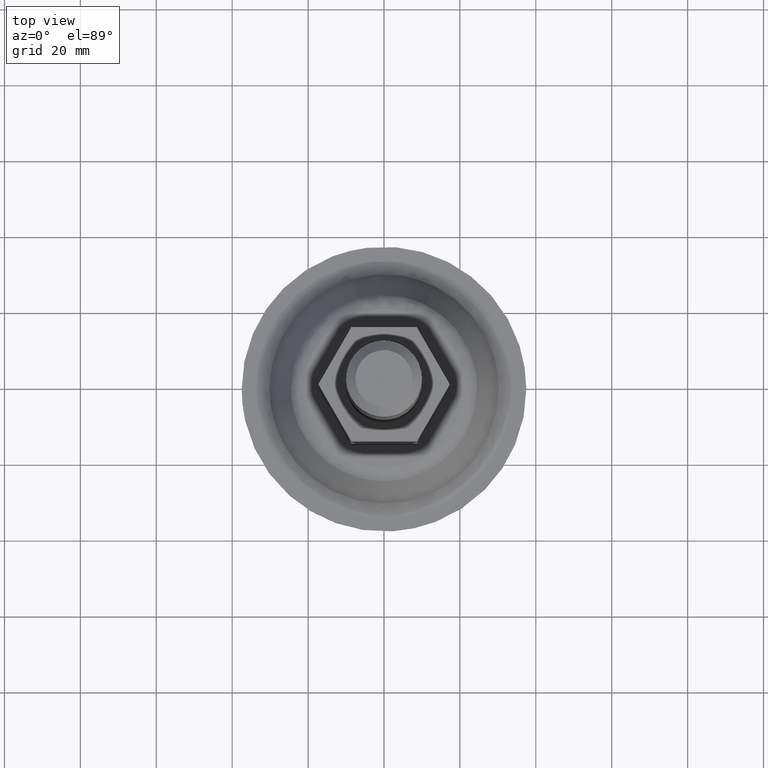
[diagram: clean part render]
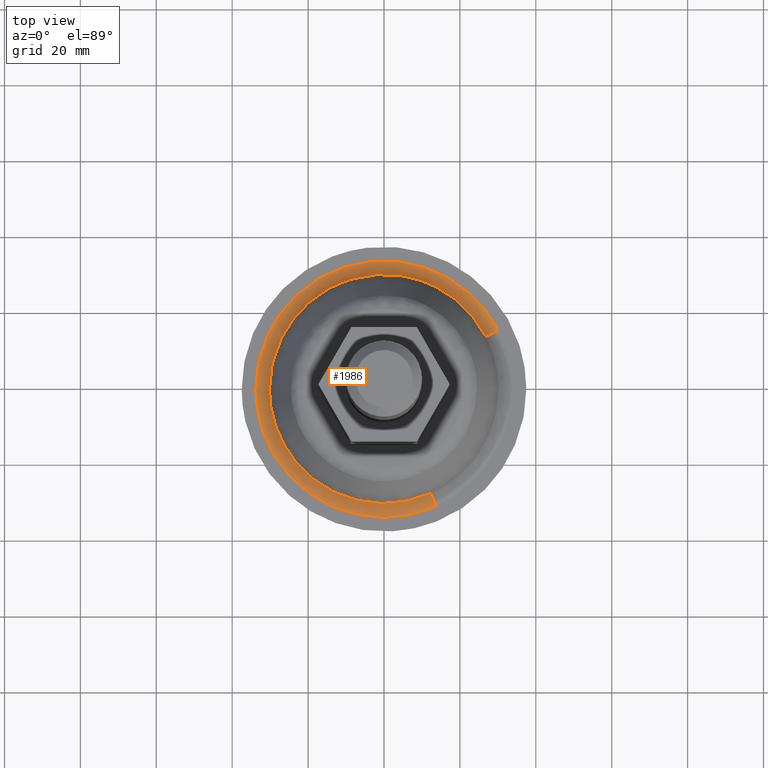
[diagram: same view with one face highlighted and labeled with its STEP entity id]
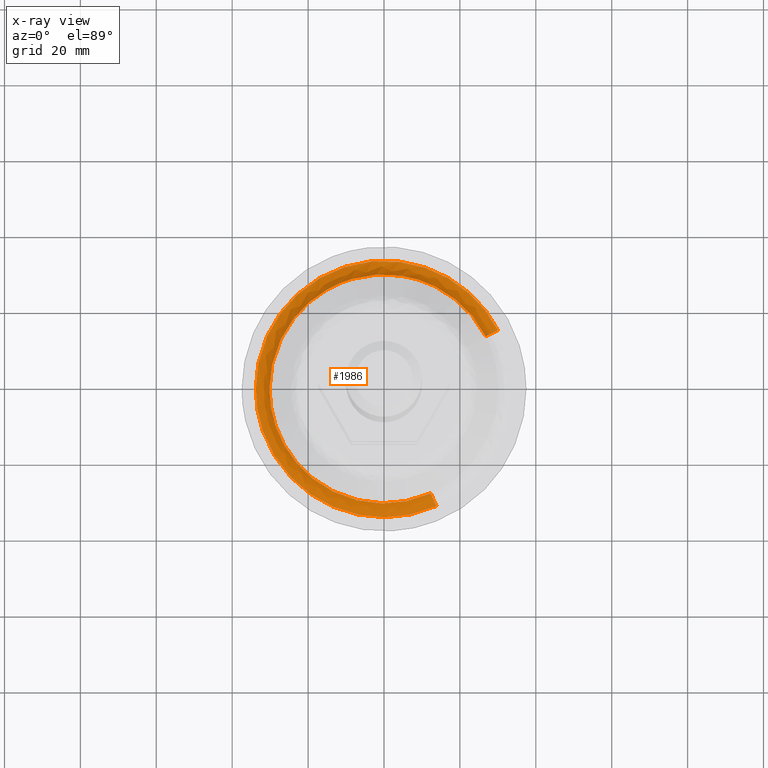
[diagram: x-ray of the same camera — body ghosted, the highlighted face saturated]
A machine part, top view. The second image highlights one B-rep face of the part: STEP entity #1986.
The next image is the same camera in x-ray: the body ghosted, the highlighted face saturated — about 0% of this face is hidden behind the body in this view.
In plain terms, the highlighted face is a freeform B-spline surface patch.
Its self-contained STEP definition (entity closure, byte-faithful):
#1363=CARTESIAN_POINT('',(13.517878388896150,26.992745342774910,4.237050468411897));
#1364=VERTEX_POINT('',#1363);
#1365=CARTESIAN_POINT('',(26.811445477794560,13.873994691064590,4.237050467771169));
#1366=VERTEX_POINT('',#1365);
#1367=CARTESIAN_POINT('',(13.517878388896156,26.992745342774910,4.237050468411898));
#1368=CARTESIAN_POINT('',(22.298365181530201,22.595506338426521,4.237050468196457));
#1369=CARTESIAN_POINT('',(26.811445477794560,13.873994691064585,4.237050467771169));
#1377=(BOUNDED_CURVE()B_SPLINE_CURVE(2,(#1367,#1368,#1369),.UNSPECIFIED.,.F.,.U.)B_SPLINE_CURVE_WITH_KNOTS((3,3),(0.326127052924682,0.421825371002833),.UNSPECIFIED.)CURVE()GEOMETRIC_REPRESENTATION_ITEM()RATIONAL_B_SPLINE_CURVE((0.875940413897502,0.832104291764548,0.874103860135936))REPRESENTATION_ITEM(''));
#1378=EDGE_CURVE('',#1364,#1366,#1377,.T.);
#1464=CARTESIAN_POINT('',(-8.573974541969548,28.945261810030381,4.237054400955577));
#1465=VERTEX_POINT('',#1464);
#1471=CARTESIAN_POINT('',(-30.188430520198551,0.0,4.237050468566710));
#1472=VERTEX_POINT('',#1471);
#1473=CARTESIAN_POINT('',(-30.188430520198551,0.0,4.237050468566710));
#1474=CARTESIAN_POINT('',(-30.188430246010984,22.542771308564824,4.237052434761144));
#1475=CARTESIAN_POINT('',(-8.573974541969548,28.945261810030377,4.237054400955578));
#1483=(BOUNDED_CURVE()B_SPLINE_CURVE(2,(#1473,#1474,#1475),.UNSPECIFIED.,.F.,.U.)B_SPLINE_CURVE_WITH_KNOTS((3,3),(0.0,0.201641530438395),.UNSPECIFIED.)CURVE()GEOMETRIC_REPRESENTATION_ITEM()RATIONAL_B_SPLINE_CURVE((1.0,0.763762252413711,0.908607232592370))REPRESENTATION_ITEM(''));
#1484=EDGE_CURVE('',#1472,#1465,#1483,.T.);
#1486=CARTESIAN_POINT('',(12.317877356347200,-27.561045603006491,4.237050467751741));
#1487=VERTEX_POINT('',#1486);
#1488=CARTESIAN_POINT('',(12.317877356347205,-27.561045603006495,4.237050467751740));
#1489=CARTESIAN_POINT('',(6.439147325489929,-30.188430520198558,4.237050468566710));
#1490=CARTESIAN_POINT('',(0.0,-30.188430520198551,4.237050468566710));
#1491=CARTESIAN_POINT('',(-30.188430520198555,-30.188430520198555,4.237050468566710));
#1492=CARTESIAN_POINT('',(-30.188430520198551,0.0,4.237050468566710));
#1500=(BOUNDED_CURVE()B_SPLINE_CURVE(2,(#1488,#1489,#1490,#1491,#1492),.UNSPECIFIED.,.F.,.U.)B_SPLINE_CURVE_WITH_KNOTS((3,2,3),(0.680709483577531,0.750000000000000,1.0),.UNSPECIFIED.)CURVE()GEOMETRIC_REPRESENTATION_ITEM()RATIONAL_B_SPLINE_CURVE((0.882641638331993,0.918821110447106,1.0,0.707106781186547,1.0))REPRESENTATION_ITEM(''));
#1501=EDGE_CURVE('',#1487,#1472,#1500,.T.);
#1548=CARTESIAN_POINT('',(-8.573974541969548,28.945261810030377,4.237054400955578));
#1549=CARTESIAN_POINT('',(-4.377112379070299,30.188429008750290,4.237053679103173));
#1550=CARTESIAN_POINT('',(0.000000339898227,30.188429372709980,4.237052906008486));
#1551=CARTESIAN_POINT('',(7.136676288094860,30.188429966129085,4.237051645514042));
#1552=CARTESIAN_POINT('',(13.517878388896150,26.992745342774910,4.237050468411897));
#1560=(BOUNDED_CURVE()B_SPLINE_CURVE(2,(#1548,#1549,#1550,#1551,#1552),.UNSPECIFIED.,.F.,.U.)B_SPLINE_CURVE_WITH_KNOTS((3,2,3),(0.201641530438395,0.250000000000000,0.326127052924682),.UNSPECIFIED.)CURVE()GEOMETRIC_REPRESENTATION_ITEM()RATIONAL_B_SPLINE_CURVE((0.908607232592370,0.943344528772836,1.0,0.910811609720431,0.875940413897502))REPRESENTATION_ITEM(''));
#1561=EDGE_CURVE('',#1465,#1364,#1560,.T.);
#1889=CARTESIAN_POINT('',(13.868563357608258,-31.030679725982115,2.005508355514911));
#1890=CARTESIAN_POINT('',(-15.435365784082222,-44.127505239221321,2.005508355514911));
#1891=CARTESIAN_POINT('',(-30.186713145655364,-15.620578840823697,2.005508355514911));
#1892=CARTESIAN_POINT('',(-45.807291986479058,14.566134304831667,2.005508355514911));
#1893=CARTESIAN_POINT('',(-15.620578840823697,30.186713145655364,2.005508355514911));
#1894=CARTESIAN_POINT('',(14.566134304831666,45.807291986479072,2.005508355514911));
#1895=CARTESIAN_POINT('',(30.186713145655364,15.620578840823697,2.005508355514911));
#1896=CARTESIAN_POINT('',(12.730357882329253,-28.483963915914732,1.858963620420696));
#1897=CARTESIAN_POINT('',(-14.168571423674409,-40.505921173260319,1.858963620420695));
#1898=CARTESIAN_POINT('',(-27.709262432333098,-14.338583878173209,1.858963620420696));
#1899=CARTESIAN_POINT('',(-42.047846310506294,13.370678554159884,1.858963620420695));
#1900=CARTESIAN_POINT('',(-14.338583878173209,27.709262432333098,1.858963620420696));
#1901=CARTESIAN_POINT('',(13.370678554159882,42.047846310506294,1.858963620420695));
#1902=CARTESIAN_POINT('',(27.709262432333098,14.338583878173209,1.858963620420696));
#1903=CARTESIAN_POINT('',(12.282242370426843,-27.481312915120213,4.427354544556725));
#1904=CARTESIAN_POINT('',(-13.669830013956551,-39.080090747327844,4.427354544556723));
#1905=CARTESIAN_POINT('',(-26.733881344536748,-13.833857937715386,4.427354544556725));
#1906=CARTESIAN_POINT('',(-40.567739282252127,12.900023406821353,4.427354544556725));
#1907=CARTESIAN_POINT('',(-13.833857937715397,26.733881344536748,4.427354544556725));
#1908=CARTESIAN_POINT('',(12.900023406821353,40.567739282252127,4.427354544556725));
#1909=CARTESIAN_POINT('',(26.733881344536748,13.833857937715397,4.427354544556725));
#1917=(BOUNDED_SURFACE()B_SPLINE_SURFACE(2,2,((#1889,#1896,#1903),(#1890,#1897,#1904),(#1891,#1898,#1905),(#1892,#1899,#1906),(#1893,#1900,#1907),(#1894,#1901,#1908),(#1895,#1902,#1909)),.UNSPECIFIED.,.F.,.F.,.U.)B_SPLINE_SURFACE_WITH_KNOTS((3,2,2,3),(3,3),(0.0,54.061945841300883,110.376472759322600,166.690999677344390),(0.0,5.033719472252810),.UNSPECIFIED.)GEOMETRIC_REPRESENTATION_ITEM()RATIONAL_B_SPLINE_SURFACE(((0.898933571987331,0.737985855779478,0.901312929656294),(0.661043326759624,0.542688181205107,0.662793020572444),(0.919619680268002,0.754968262264206,0.922053791315759),(0.650269312030109,0.533843177827644,0.651990488458139),(0.919619680268002,0.754968262264206,0.922053791315759),(0.650269312030109,0.533843177827644,0.651990488458139),(0.919619680268002,0.754968262264206,0.922053791315759)))REPRESENTATION_ITEM('')SURFACE());
#1918=CARTESIAN_POINT('',(13.782938070423331,-30.839094572454520,2.000000000000206));
#1919=VERTEX_POINT('',#1918);
#1920=CARTESIAN_POINT('',(-33.778974900876548,0.0,2.000000000000200));
#1921=VERTEX_POINT('',#1920);
#1922=CARTESIAN_POINT('',(13.782938070423327,-30.839094572454524,2.000000000000207));
#1923=CARTESIAN_POINT('',(7.205005100291854,-33.778974900876541,2.000000000000199));
#1924=CARTESIAN_POINT('',(0.0,-33.778974900876548,2.000000000000200));
#1925=CARTESIAN_POINT('',(-33.778974900876555,-33.778974900876555,2.000000000000199));
#1926=CARTESIAN_POINT('',(-33.778974900876548,0.0,2.000000000000200));
#1934=(BOUNDED_CURVE()B_SPLINE_CURVE(2,(#1922,#1923,#1924,#1925,#1926),.UNSPECIFIED.,.F.,.U.)B_SPLINE_CURVE_WITH_KNOTS((3,2,3),(0.680709483584243,0.750000000000000,1.0),.UNSPECIFIED.)CURVE()GEOMETRIC_REPRESENTATION_ITEM()RATIONAL_B_SPLINE_CURVE((0.882641638339003,0.918821110454971,1.0,0.707106781186548,1.0))REPRESENTATION_ITEM(''));
#1935=EDGE_CURVE('',#1919,#1921,#1934,.T.);
#1936=ORIENTED_EDGE('',*,*,#1935,.F.);
#1937=CARTESIAN_POINT('',(13.782938070423324,-30.839094572454520,2.000000000000206));
#1938=CARTESIAN_POINT('',(12.766055496361759,-28.563836733268712,2.000000174340844));
#1939=CARTESIAN_POINT('',(12.317877356347205,-27.561045603006498,4.237050467751741));
#1947=(BOUNDED_CURVE()B_SPLINE_CURVE(2,(#1937,#1938,#1939),.UNSPECIFIED.,.F.,.U.)B_SPLINE_CURVE_WITH_KNOTS((3,3),(-1.645059834546889,-0.344443061043687),.UNSPECIFIED.)CURVE()GEOMETRIC_REPRESENTATION_ITEM()RATIONAL_B_SPLINE_CURVE((0.884983915923262,0.752043517224368,0.887147264454105))REPRESENTATION_ITEM(''));
#1948=EDGE_CURVE('',#1919,#1487,#1947,.T.);
#1949=ORIENTED_EDGE('',*,*,#1948,.T.);
#1950=ORIENTED_EDGE('',*,*,#1501,.T.);
#1951=ORIENTED_EDGE('',*,*,#1484,.T.);
#1952=ORIENTED_EDGE('',*,*,#1561,.T.);
#1953=ORIENTED_EDGE('',*,*,#1378,.T.);
#1954=CARTESIAN_POINT('',(30.000338689049020,15.524136512031831,2.000000000000206));
#1955=VERTEX_POINT('',#1954);
#1956=CARTESIAN_POINT('',(30.000338689049020,15.524136512031832,2.000000000000206));
#1957=CARTESIAN_POINT('',(27.786962883823261,14.378791171448661,2.000000174342091));
#1958=CARTESIAN_POINT('',(26.811445477794564,13.873994691064581,4.237050467771169));
#1966=(BOUNDED_CURVE()B_SPLINE_CURVE(2,(#1956,#1957,#1958),.UNSPECIFIED.,.F.,.U.)B_SPLINE_CURVE_WITH_KNOTS((3,3),(-1.645059834546275,-0.344443061030362),.UNSPECIFIED.)CURVE()GEOMETRIC_REPRESENTATION_ITEM()RATIONAL_B_SPLINE_CURVE((0.905349017062885,0.769349416250358,0.907562148209500))REPRESENTATION_ITEM(''));
#1967=EDGE_CURVE('',#1955,#1366,#1966,.T.);
#1968=ORIENTED_EDGE('',*,*,#1967,.F.);
#1969=CARTESIAN_POINT('',(-33.778974900876548,0.0,2.000000000000200));
#1970=CARTESIAN_POINT('',(-33.778974900876555,33.778974900876555,2.000000000000199));
#1971=CARTESIAN_POINT('',(0.0,33.778974900876548,2.000000000000200));
#1972=CARTESIAN_POINT('',(20.554092053235163,33.778974900876534,2.000000000000200));
#1973=CARTESIAN_POINT('',(30.000338689049013,15.524136512031832,2.000000000000206));
#1981=(BOUNDED_CURVE()B_SPLINE_CURVE(2,(#1969,#1970,#1971,#1972,#1973),.UNSPECIFIED.,.F.,.U.)B_SPLINE_CURVE_WITH_KNOTS((3,2,3),(0.0,0.250000000000000,0.421825371008840),.UNSPECIFIED.)CURVE()GEOMETRIC_REPRESENTATION_ITEM()RATIONAL_B_SPLINE_CURVE((1.0,0.707106781186548,1.0,0.798694056045620,0.874103860141210))REPRESENTATION_ITEM(''));
#1982=EDGE_CURVE('',#1921,#1955,#1981,.T.);
#1983=ORIENTED_EDGE('',*,*,#1982,.F.);
#1984=EDGE_LOOP('',(#1936,#1949,#1950,#1951,#1952,#1953,#1968,#1983));
#1985=FACE_OUTER_BOUND('',#1984,.T.);
#1986=ADVANCED_FACE('',(#1985),#1917,.F.);